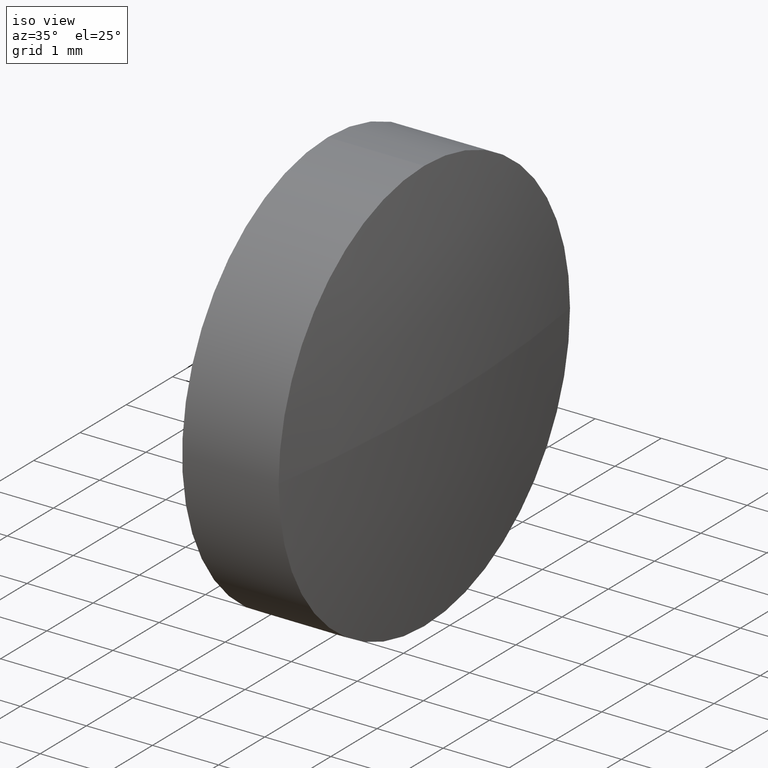
[diagram: clean part render]
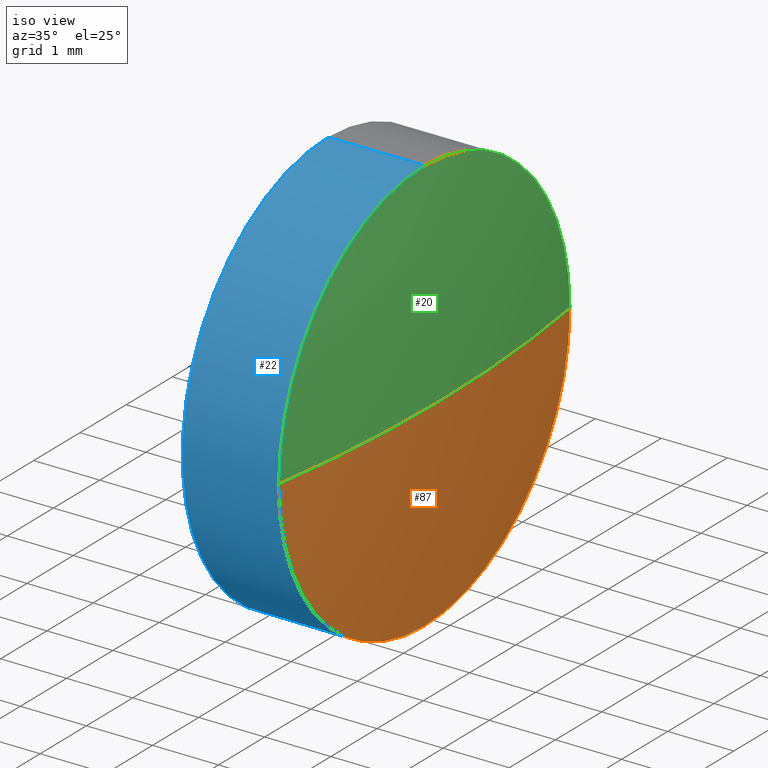
[diagram: same view with three faces highlighted in distinct colors, each labeled with its STEP entity id]
A machine part, iso view with three faces highlighted in distinct colors.
Their STEP definitions:

[orange] entity #87 — the highlighted spherical surface has radius 20.7919 mm.
#7 = DIRECTION ( 'NONE',  ( 0.0000000000000000000, 1.224646799147353200E-016, -1.000000000000000000 ) ) ;
#8 = ORIENTED_EDGE ( 'NONE', *, *, #145, .F. ) ;
#12 = AXIS2_PLACEMENT_3D ( 'NONE', #99, #46, #16 ) ;
#13 = CIRCLE ( 'NONE', #135, 20.79187499999990500 ) ;
#14 = DIRECTION ( 'NONE',  ( -1.000000000000000000, -0.0000000000000000000, -0.0000000000000000000 ) ) ;
#16 = DIRECTION ( 'NONE',  ( 0.0000000000000000000, 1.000000000000000000, 0.0000000000000000000 ) ) ;
#29 = CARTESIAN_POINT ( 'NONE',  ( 819.9228674675298400, 336.5592304436489700, -3.149999999999875100 ) ) ;
#30 = CARTESIAN_POINT ( 'NONE',  ( 820.1628674675299600, 336.5592304436480600, 0.0000000000000000000 ) ) ;
#31 = EDGE_LOOP ( 'NONE', ( #40, #63, #8, #98 ) ) ;
#39 = VERTEX_POINT ( 'NONE', #132 ) ;
#40 = ORIENTED_EDGE ( 'NONE', *, *, #125, .F. ) ;
#46 = DIRECTION ( 'NONE',  ( -0.0000000000000000000, 0.0000000000000000000, -1.000000000000000000 ) ) ;
#50 = DIRECTION ( 'NONE',  ( -1.000000000000000000, -0.0000000000000000000, -0.0000000000000000000 ) ) ;
#51 = AXIS2_PLACEMENT_3D ( 'NONE', #81, #14, #114 ) ;
#52 = AXIS2_PLACEMENT_3D ( 'NONE', #164, #50, #60 ) ;
#60 = DIRECTION ( 'NONE',  ( 0.0000000000000000000, 0.0000000000000000000, 1.000000000000000000 ) ) ;
#62 = DIRECTION ( 'NONE',  ( 1.000000000000000000, 0.0000000000000000000, 0.0000000000000000000 ) ) ;
#63 = ORIENTED_EDGE ( 'NONE', *, *, #172, .T. ) ;
#64 = CARTESIAN_POINT ( 'NONE',  ( 799.3709924675300700, 336.5592304436480600, 0.0000000000000000000 ) ) ;
#68 = VERTEX_POINT ( 'NONE', #30 ) ;
#73 = SPHERICAL_SURFACE ( 'NONE', #12, 20.79187499999990500 ) ;
#74 = EDGE_CURVE ( 'NONE', #167, #79, #93, .T. ) ;
#79 = VERTEX_POINT ( 'NONE', #29 ) ;
#81 = CARTESIAN_POINT ( 'NONE',  ( 819.9228674675298400, 336.5592304436489700, 0.0000000000000000000 ) ) ;
#87 = ADVANCED_FACE ( 'NONE', ( #177 ), #73, .T. ) ;
#88 = DIRECTION ( 'NONE',  ( 0.0000000000000000000, 1.000000000000000000, 1.224646799147353200E-016 ) ) ;
#90 = CARTESIAN_POINT ( 'NONE',  ( 819.9228674675298400, 339.7092304436488900, 0.0000000000000000000 ) ) ;
#93 = CIRCLE ( 'NONE', #51, 3.149999999999875100 ) ;
#96 = CIRCLE ( 'NONE', #156, 20.79187499999990500 ) ;
#98 = ORIENTED_EDGE ( 'NONE', *, *, #74, .F. ) ;
#99 = CARTESIAN_POINT ( 'NONE',  ( 799.3709924675300700, 336.5592304436480600, 0.0000000000000000000 ) ) ;
#102 = CARTESIAN_POINT ( 'NONE',  ( 799.3709924675300700, 336.5592304436480600, 0.0000000000000000000 ) ) ;
#114 = DIRECTION ( 'NONE',  ( 0.0000000000000000000, 0.0000000000000000000, 1.000000000000000000 ) ) ;
#125 = EDGE_CURVE ( 'NONE', #68, #167, #13, .T. ) ;
#132 = CARTESIAN_POINT ( 'NONE',  ( 819.9228674675298400, 333.4092304436482000, -3.857637417314011800E-016 ) ) ;
#135 = AXIS2_PLACEMENT_3D ( 'NONE', #102, #142, #62 ) ;
#141 = CIRCLE ( 'NONE', #52, 3.149999999999875100 ) ;
#142 = DIRECTION ( 'NONE',  ( -0.0000000000000000000, 0.0000000000000000000, 1.000000000000000000 ) ) ;
#145 = EDGE_CURVE ( 'NONE', #79, #39, #141, .T. ) ;
#156 = AXIS2_PLACEMENT_3D ( 'NONE', #64, #7, #88 ) ;
#164 = CARTESIAN_POINT ( 'NONE',  ( 819.9228674675298400, 336.5592304436489700, 0.0000000000000000000 ) ) ;
#167 = VERTEX_POINT ( 'NONE', #90 ) ;
#172 = EDGE_CURVE ( 'NONE', #68, #39, #96, .T. ) ;
#177 = FACE_OUTER_BOUND ( 'NONE', #31, .T. ) ;

[blue] entity #22 — the highlighted cylindrical surface (partial cylindrical patch) has radius 3.15 mm, axis along (-1, -0, -0).
#1 = EDGE_CURVE ( 'NONE', #112, #130, #159, .T. ) ;
#10 = CIRCLE ( 'NONE', #149, 3.149999999999875100 ) ;
#11 = DIRECTION ( 'NONE',  ( 0.0000000000000000000, 0.0000000000000000000, 1.000000000000000000 ) ) ;
#22 = ADVANCED_FACE ( 'NONE', ( #80 ), #124, .T. ) ;
#23 = CARTESIAN_POINT ( 'NONE',  ( 819.9228674675298400, 336.5592304436489700, 3.149999999999875100 ) ) ;
#25 = LINE ( 'NONE', #34, #27 ) ;
#27 = VECTOR ( 'NONE', #150, 1000.000000000000000 ) ;
#29 = CARTESIAN_POINT ( 'NONE',  ( 819.9228674675298400, 336.5592304436489700, -3.149999999999875100 ) ) ;
#32 = EDGE_CURVE ( 'NONE', #79, #100, #25, .T. ) ;
#34 = CARTESIAN_POINT ( 'NONE',  ( 798.2662876315907900, 336.5592304436489700, -3.149999999999875100 ) ) ;
#37 = CARTESIAN_POINT ( 'NONE',  ( 818.4628674675299200, 336.5592304436489700, 0.0000000000000000000 ) ) ;
#39 = VERTEX_POINT ( 'NONE', #132 ) ;
#42 = AXIS2_PLACEMENT_3D ( 'NONE', #48, #179, #85 ) ;
#48 = CARTESIAN_POINT ( 'NONE',  ( 798.2662876315907900, 336.5592304436489700, 0.0000000000000000000 ) ) ;
#50 = DIRECTION ( 'NONE',  ( -1.000000000000000000, -0.0000000000000000000, -0.0000000000000000000 ) ) ;
#52 = AXIS2_PLACEMENT_3D ( 'NONE', #164, #50, #60 ) ;
#58 = ORIENTED_EDGE ( 'NONE', *, *, #181, .T. ) ;
#59 = CIRCLE ( 'NONE', #107, 3.149999999999875100 ) ;
#60 = DIRECTION ( 'NONE',  ( 0.0000000000000000000, 0.0000000000000000000, 1.000000000000000000 ) ) ;
#66 = VECTOR ( 'NONE', #162, 1000.000000000000000 ) ;
#77 = DIRECTION ( 'NONE',  ( -1.000000000000000000, -0.0000000000000000000, -0.0000000000000000000 ) ) ;
#79 = VERTEX_POINT ( 'NONE', #29 ) ;
#80 = FACE_OUTER_BOUND ( 'NONE', #175, .T. ) ;
#83 = CARTESIAN_POINT ( 'NONE',  ( 818.4628674675299200, 336.5592304436489700, -3.149999999999875100 ) ) ;
#85 = DIRECTION ( 'NONE',  ( 0.0000000000000000000, 0.0000000000000000000, 1.000000000000000000 ) ) ;
#91 = EDGE_CURVE ( 'NONE', #100, #130, #59, .T. ) ;
#100 = VERTEX_POINT ( 'NONE', #83 ) ;
#105 = CARTESIAN_POINT ( 'NONE',  ( 819.9228674675298400, 336.5592304436489700, 0.0000000000000000000 ) ) ;
#106 = DIRECTION ( 'NONE',  ( -1.000000000000000000, -0.0000000000000000000, -0.0000000000000000000 ) ) ;
#107 = AXIS2_PLACEMENT_3D ( 'NONE', #37, #106, #11 ) ;
#112 = VERTEX_POINT ( 'NONE', #23 ) ;
#116 = CARTESIAN_POINT ( 'NONE',  ( 798.2662876315907900, 336.5592304436489700, 3.149999999999875100 ) ) ;
#124 = CYLINDRICAL_SURFACE ( 'NONE', #42, 3.149999999999875100 ) ;
#130 = VERTEX_POINT ( 'NONE', #155 ) ;
#132 = CARTESIAN_POINT ( 'NONE',  ( 819.9228674675298400, 333.4092304436482000, -3.857637417314011800E-016 ) ) ;
#133 = ORIENTED_EDGE ( 'NONE', *, *, #145, .T. ) ;
#141 = CIRCLE ( 'NONE', #52, 3.149999999999875100 ) ;
#145 = EDGE_CURVE ( 'NONE', #79, #39, #141, .T. ) ;
#149 = AXIS2_PLACEMENT_3D ( 'NONE', #105, #77, #166 ) ;
#150 = DIRECTION ( 'NONE',  ( -1.000000000000000000, -0.0000000000000000000, -0.0000000000000000000 ) ) ;
#155 = CARTESIAN_POINT ( 'NONE',  ( 818.4628674675299200, 336.5592304436489700, 3.149999999999875100 ) ) ;
#159 = LINE ( 'NONE', #116, #66 ) ;
#160 = ORIENTED_EDGE ( 'NONE', *, *, #1, .T. ) ;
#162 = DIRECTION ( 'NONE',  ( -1.000000000000000000, -0.0000000000000000000, -0.0000000000000000000 ) ) ;
#164 = CARTESIAN_POINT ( 'NONE',  ( 819.9228674675298400, 336.5592304436489700, 0.0000000000000000000 ) ) ;
#166 = DIRECTION ( 'NONE',  ( 0.0000000000000000000, 0.0000000000000000000, 1.000000000000000000 ) ) ;
#175 = EDGE_LOOP ( 'NONE', ( #185, #133, #58, #160, #184 ) ) ;
#179 = DIRECTION ( 'NONE',  ( -1.000000000000000000, -0.0000000000000000000, -0.0000000000000000000 ) ) ;
#181 = EDGE_CURVE ( 'NONE', #39, #112, #10, .T. ) ;
#184 = ORIENTED_EDGE ( 'NONE', *, *, #91, .F. ) ;
#185 = ORIENTED_EDGE ( 'NONE', *, *, #32, .F. ) ;

[green] entity #20 — the highlighted spherical surface has radius 20.7919 mm.
#7 = DIRECTION ( 'NONE',  ( 0.0000000000000000000, 1.224646799147353200E-016, -1.000000000000000000 ) ) ;
#10 = CIRCLE ( 'NONE', #149, 3.149999999999875100 ) ;
#13 = CIRCLE ( 'NONE', #135, 20.79187499999990500 ) ;
#20 = ADVANCED_FACE ( 'NONE', ( #38 ), #43, .T. ) ;
#23 = CARTESIAN_POINT ( 'NONE',  ( 819.9228674675298400, 336.5592304436489700, 3.149999999999875100 ) ) ;
#30 = CARTESIAN_POINT ( 'NONE',  ( 820.1628674675299600, 336.5592304436480600, 0.0000000000000000000 ) ) ;
#38 = FACE_OUTER_BOUND ( 'NONE', #53, .T. ) ;
#39 = VERTEX_POINT ( 'NONE', #132 ) ;
#43 = SPHERICAL_SURFACE ( 'NONE', #128, 20.79187499999990500 ) ;
#53 = EDGE_LOOP ( 'NONE', ( #143, #138, #55, #144 ) ) ;
#55 = ORIENTED_EDGE ( 'NONE', *, *, #86, .F. ) ;
#56 = DIRECTION ( 'NONE',  ( -0.0000000000000000000, 0.0000000000000000000, -1.000000000000000000 ) ) ;
#57 = CARTESIAN_POINT ( 'NONE',  ( 819.9228674675298400, 336.5592304436489700, 0.0000000000000000000 ) ) ;
#62 = DIRECTION ( 'NONE',  ( 1.000000000000000000, 0.0000000000000000000, 0.0000000000000000000 ) ) ;
#64 = CARTESIAN_POINT ( 'NONE',  ( 799.3709924675300700, 336.5592304436480600, 0.0000000000000000000 ) ) ;
#68 = VERTEX_POINT ( 'NONE', #30 ) ;
#69 = DIRECTION ( 'NONE',  ( -1.000000000000000000, -0.0000000000000000000, -0.0000000000000000000 ) ) ;
#77 = DIRECTION ( 'NONE',  ( -1.000000000000000000, -0.0000000000000000000, -0.0000000000000000000 ) ) ;
#86 = EDGE_CURVE ( 'NONE', #112, #167, #113, .T. ) ;
#88 = DIRECTION ( 'NONE',  ( 0.0000000000000000000, 1.000000000000000000, 1.224646799147353200E-016 ) ) ;
#90 = CARTESIAN_POINT ( 'NONE',  ( 819.9228674675298400, 339.7092304436488900, 0.0000000000000000000 ) ) ;
#96 = CIRCLE ( 'NONE', #156, 20.79187499999990500 ) ;
#102 = CARTESIAN_POINT ( 'NONE',  ( 799.3709924675300700, 336.5592304436480600, 0.0000000000000000000 ) ) ;
#105 = CARTESIAN_POINT ( 'NONE',  ( 819.9228674675298400, 336.5592304436489700, 0.0000000000000000000 ) ) ;
#112 = VERTEX_POINT ( 'NONE', #23 ) ;
#113 = CIRCLE ( 'NONE', #119, 3.149999999999875100 ) ;
#117 = CARTESIAN_POINT ( 'NONE',  ( 799.3709924675300700, 336.5592304436480600, 0.0000000000000000000 ) ) ;
#118 = DIRECTION ( 'NONE',  ( 0.0000000000000000000, 1.000000000000000000, 0.0000000000000000000 ) ) ;
#119 = AXIS2_PLACEMENT_3D ( 'NONE', #57, #69, #129 ) ;
#125 = EDGE_CURVE ( 'NONE', #68, #167, #13, .T. ) ;
#128 = AXIS2_PLACEMENT_3D ( 'NONE', #117, #56, #118 ) ;
#129 = DIRECTION ( 'NONE',  ( 0.0000000000000000000, 0.0000000000000000000, 1.000000000000000000 ) ) ;
#132 = CARTESIAN_POINT ( 'NONE',  ( 819.9228674675298400, 333.4092304436482000, -3.857637417314011800E-016 ) ) ;
#135 = AXIS2_PLACEMENT_3D ( 'NONE', #102, #142, #62 ) ;
#138 = ORIENTED_EDGE ( 'NONE', *, *, #125, .T. ) ;
#142 = DIRECTION ( 'NONE',  ( -0.0000000000000000000, 0.0000000000000000000, 1.000000000000000000 ) ) ;
#143 = ORIENTED_EDGE ( 'NONE', *, *, #172, .F. ) ;
#144 = ORIENTED_EDGE ( 'NONE', *, *, #181, .F. ) ;
#149 = AXIS2_PLACEMENT_3D ( 'NONE', #105, #77, #166 ) ;
#156 = AXIS2_PLACEMENT_3D ( 'NONE', #64, #7, #88 ) ;
#166 = DIRECTION ( 'NONE',  ( 0.0000000000000000000, 0.0000000000000000000, 1.000000000000000000 ) ) ;
#167 = VERTEX_POINT ( 'NONE', #90 ) ;
#172 = EDGE_CURVE ( 'NONE', #68, #39, #96, .T. ) ;
#181 = EDGE_CURVE ( 'NONE', #39, #112, #10, .T. ) ;